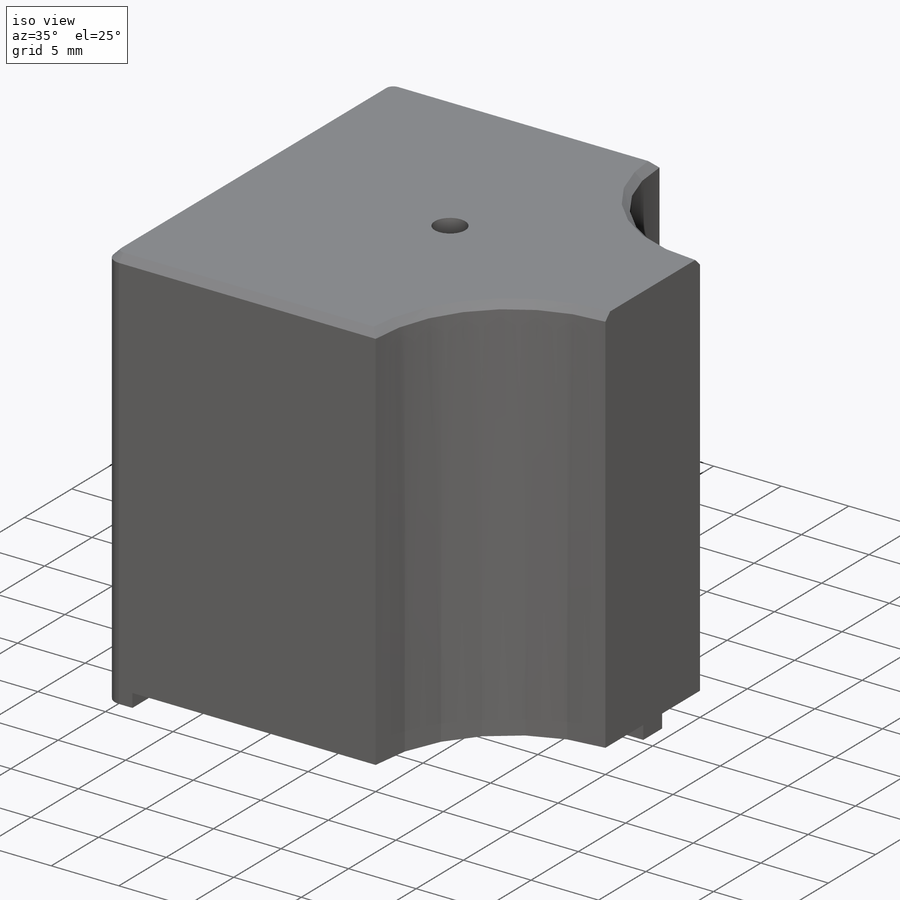
[diagram: iso view]
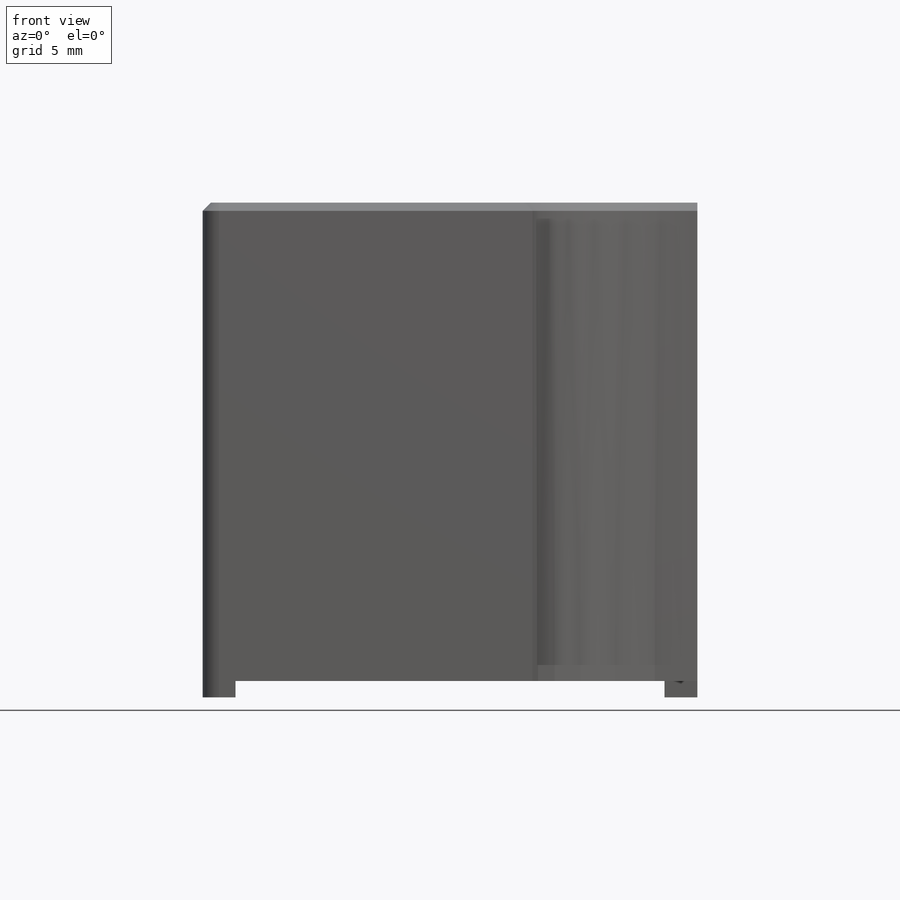
[diagram: front view]
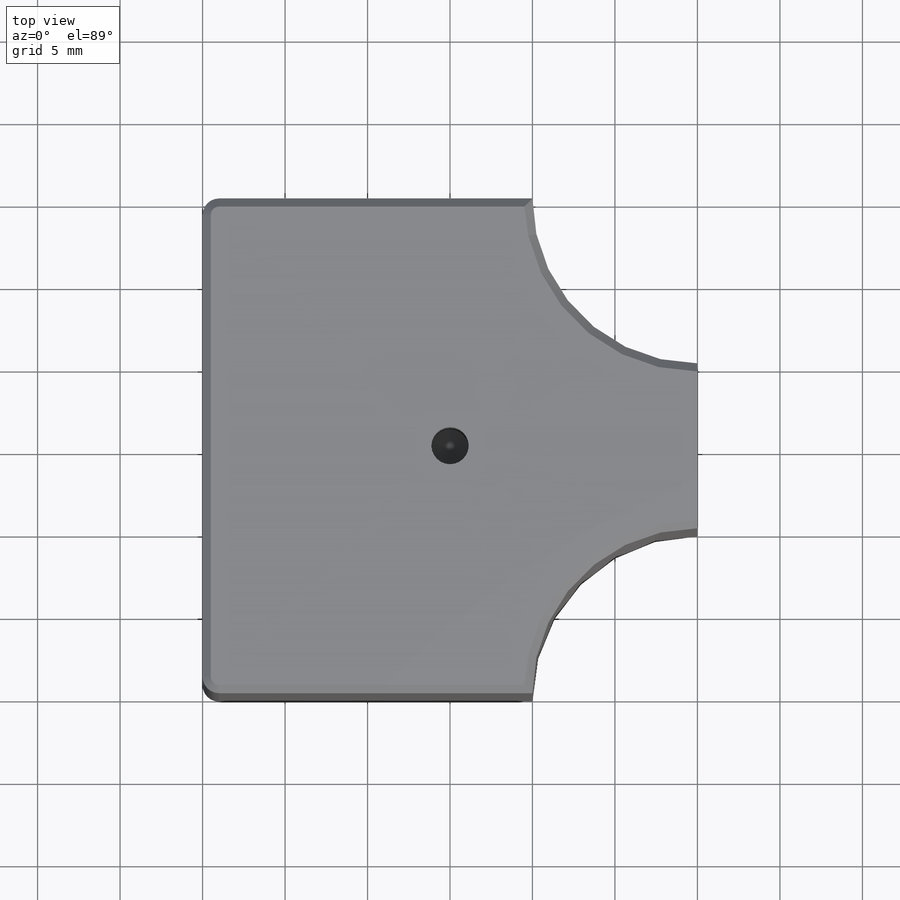
[diagram: top view]
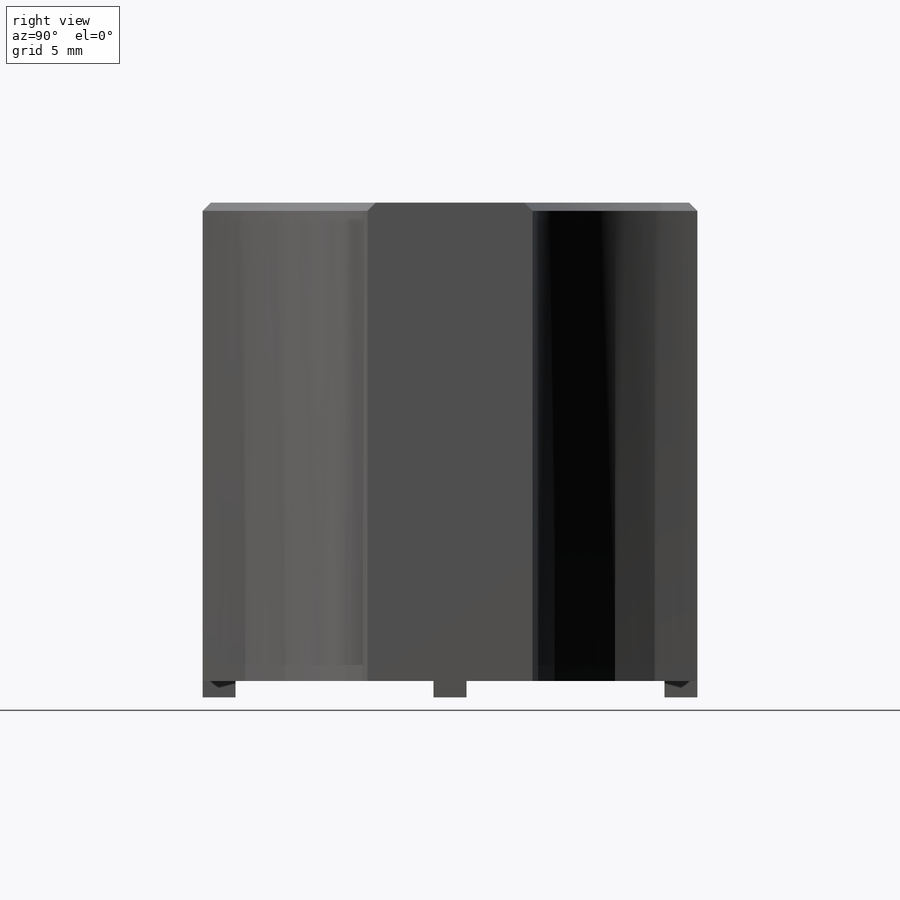
[diagram: right view]
SOLIDWORKS PART (.sldprt)
format: sldprt  version: not decoded by parser v0  size: 274,944 bytes
history: native  units: mm
features: sketch x7, cut_extrude x2, hole x2, thread x2, material x1, extrude x1, mirror x1, fillet x1, chamfer x1 + 1 further entry (+10 scaffold rows collapsed)
feature tree (29):
  scaffold x10  (default folders/planes/origin — collapsed)
  material  "Copper"
  "Origin"  ID=392984584
  sketch  "Sketch1"  dims[D1=30.0mm D2=30.0mm]
  extrude  "Boss-Extrude1"  Depth=30mm
  sketch  "Sketch2"  dims[D1=~7.46425mm]
  cut_extrude  "Cut-Extrude1"  [1 undecoded]
  mirror  "Mirror1"
  sketch  "Sketch3"  dims[D1=2.0mm D2=2.0mm D3=2.0mm D4=2.0mm D5=2.0mm D6=2.0mm D7=4.0mm]
  cut_extrude  "Cut-Extrude2"  Depth=1mm
  hole  "#8-32 Tapped Hole1"  Diameter=3.4544mm Depth=10.7188mm
  sketch  "Sketch5"
  sketch  "Sketch4"  dims[hole-wizard template sketch: 50 standard entries collapsed; hole parameters above]
  thread  "Hole Thread3"  Diameter=8.3312mm  [1 undecoded]
  hole  "#4-40 Tapped Hole1"  Diameter=2.2606mm Depth=7.5946mm
  sketch  "Sketch7"
  sketch  "Sketch6"  dims[hole-wizard template sketch: 50 standard entries collapsed; hole parameters above]
  thread  "Hole Thread4"  Diameter=5.6896mm  [1 undecoded]
  fillet  "Fillet1"  Radius=1mm
  chamfer  "Chamfer1"  Distance=0.5mm Angle=45deg
decode coverage: 13 of 17 modeling features carry decoded parameters; 1 rows unclassified (native names shown)
note: ~ marks probable driven/reference dimensions
note: 3 parameter values undecoded
note: suppression state not decoded; provenance and decode notes live in map.json
